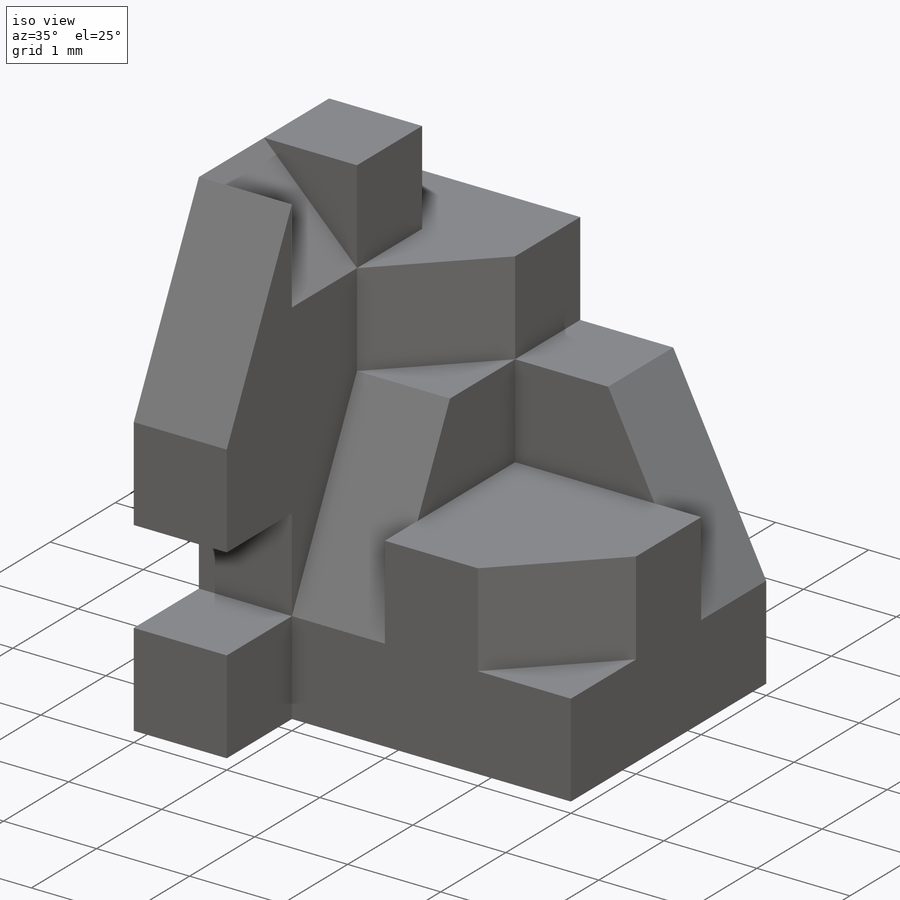
[diagram: iso view]
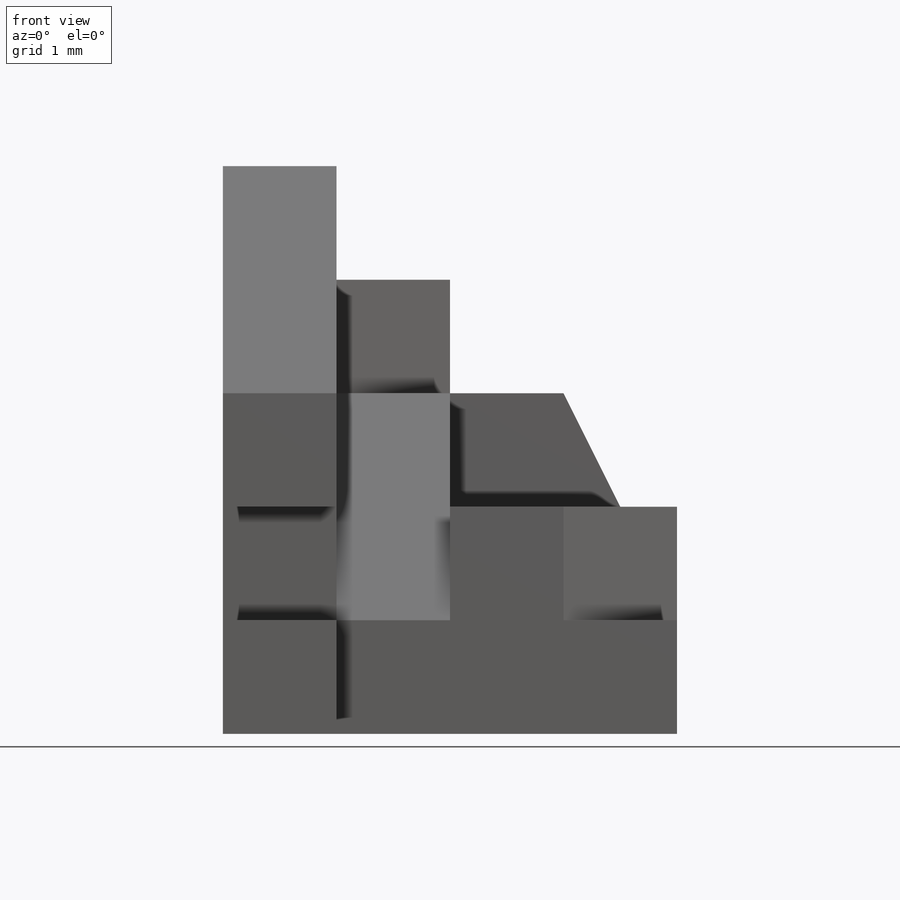
[diagram: front view]
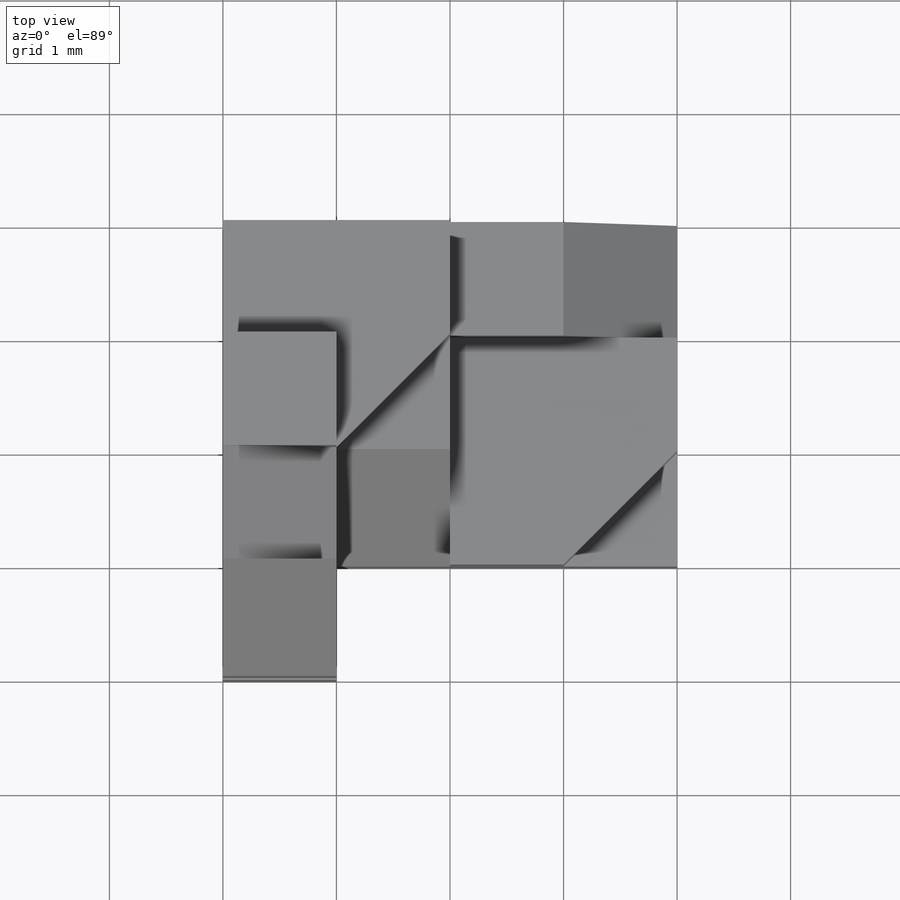
[diagram: top view]
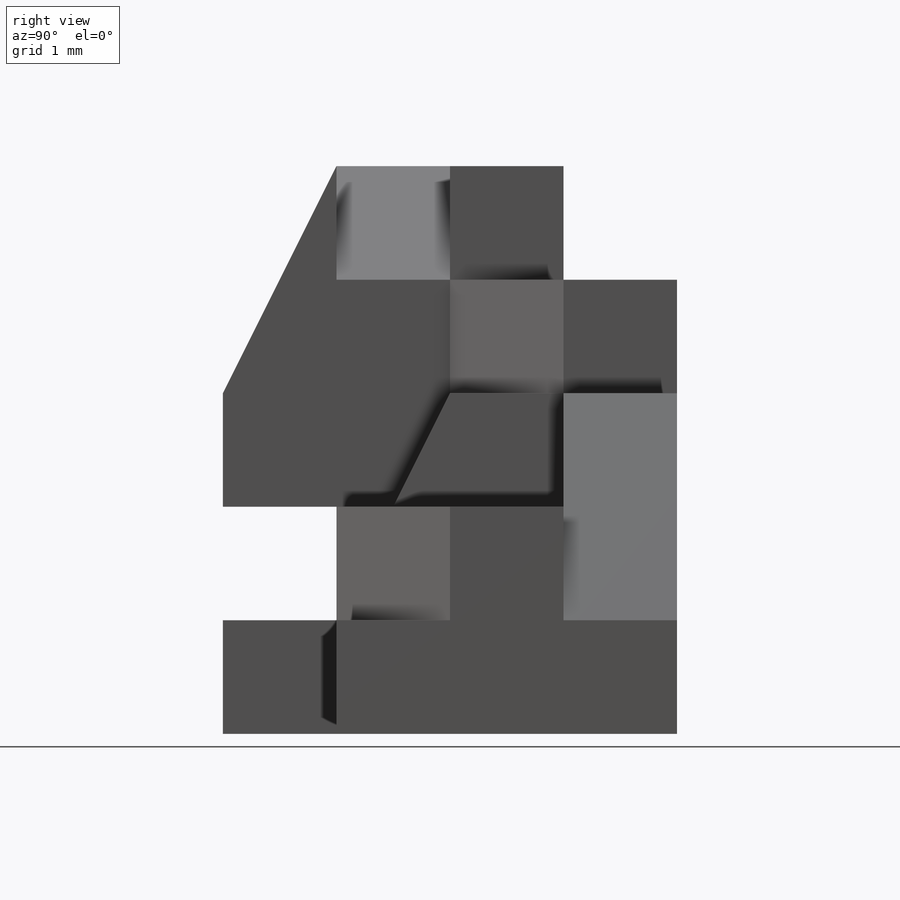
[diagram: right view]
SOLIDWORKS PART (.sldprt)
format: sldprt  version: not decoded by parser v0  size: 301,568 bytes
history: native  units: mm
features: sketch x14, cut_extrude x10, plane x2, material x1, extrude x1 (+13 scaffold rows collapsed)
feature tree (41):
  scaffold x13  (default folders/planes/origin — collapsed)
  material  "Material <not specified>"
  sketch  "Sketch1"  dims[D1=5.0mm D2=4.0mm]
  extrude  "Boss-Extrude1"  Depth=4mm
  sketch  "Sketch2"  dims[D1=1.0mm D2=3.0mm]
  cut_extrude  "Cut-Extrude1"  [1 undecoded]
  sketch  "Sketch3"  dims[D1=1.0mm D2=1.0mm]
  cut_extrude  "Cut-Extrude2"  Depth=1mm
  sketch  "Sketch4"  dims[D1=1.0mm]
  cut_extrude  "Cut-Extrude3"  Depth=1mm
  sketch  "Sketch5"  dims[D1=1.0mm]
  cut_extrude  "Cut-Extrude5"  Depth=1mm
  sketch  "Sketch6"  dims[D1=2.0mm D2=2.0mm]
  cut_extrude  "Cut-Extrude6"  Depth=2mm
  sketch  "Sketch7"  dims[D1=1.0mm D2=1.0mm]
  cut_extrude  "Cut-Extrude7"  Depth=1mm
  sketch  "Sketch8"  dims[D1=2.0mm D2=1.0mm D3=1.0mm D4=1.0mm]
  cut_extrude  "Cut-Extrude8"  Depth=1mm
  sketch  "Sketch9"
  cut_extrude  "Cut-Extrude9"  Depth=1mm
  sketch  "Sketch10"  dims[D1=1.0mm]
  sketch  "Sketch11"
  plane  "Plane1"
  sketch  "Sketch12"
  cut_extrude  "Cut-Extrude10"  Depth=1mm
  sketch  "Sketch13"  dims[D1=1.0mm]
  plane  "Plane2"
  sketch  "Sketch14"
  cut_extrude  "Cut-Extrude11"  Depth=1mm
decode coverage: 20 of 25 modeling features carry decoded parameters
note: 1 parameter value undecoded
note: suppression state not decoded; provenance and decode notes live in map.json
